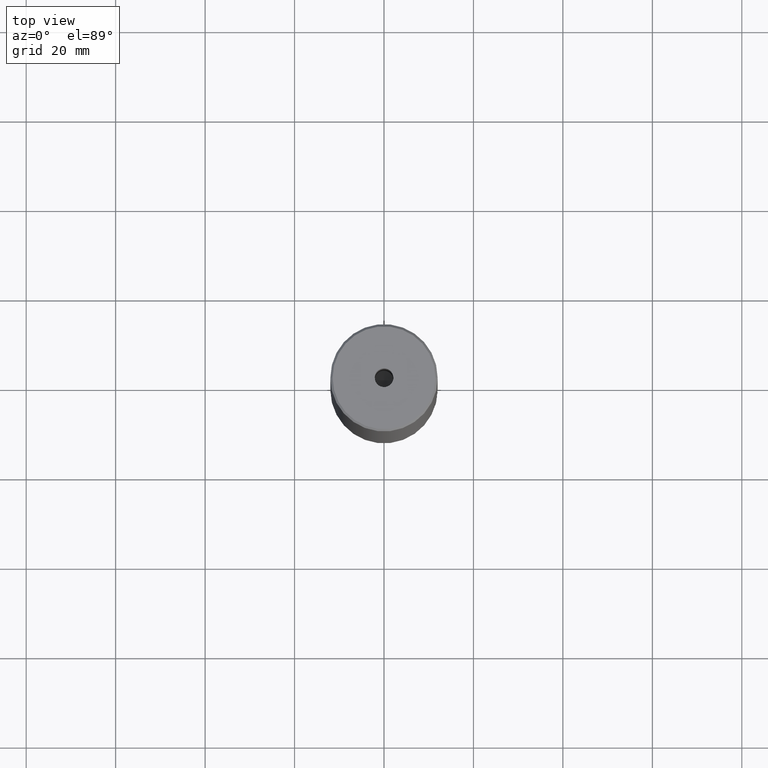
[diagram: clean part render]
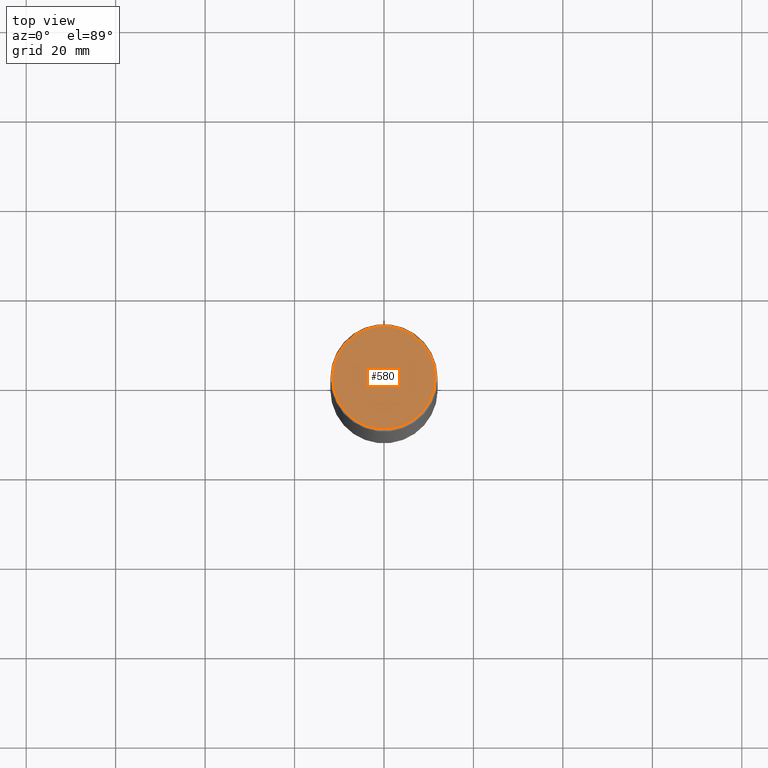
[diagram: same view with one face highlighted and labeled with its STEP entity id]
A machine part, top view. The second image highlights one B-rep face of the part: STEP entity #580.
In plain terms, the highlighted planar face has unit normal (0, -0, 1).
Its self-contained STEP definition (entity closure, byte-faithful):
#12 = VERTEX_POINT ( 'NONE', #170 ) ;
#14 = DIRECTION ( 'NONE',  ( 1.000000000000000000, 0.000000000000000000, 0.000000000000000000 ) ) ;
#22 = CIRCLE ( 'NONE', #155, 11.50000000000002309 ) ;
#59 = DIRECTION ( 'NONE',  ( 1.000000000000000000, 0.000000000000000000, 0.000000000000000000 ) ) ;
#65 = AXIS2_PLACEMENT_3D ( 'NONE', #421, #424, #59 ) ;
#66 = PLANE ( 'NONE',  #65 ) ;
#70 = FACE_BOUND ( 'NONE', #432, .T. ) ;
#75 = EDGE_CURVE ( 'NONE', #12, #240, #553, .T. ) ;
#82 = EDGE_CURVE ( 'NONE', #532, #320, #397, .T. ) ;
#85 = CARTESIAN_POINT ( 'NONE',  ( 0.000000000000000000, 0.000000000000000000, 0.000000000000000000 ) ) ;
#94 = DIRECTION ( 'NONE',  ( -0.000000000000000000, -0.000000000000000000, 1.000000000000000000 ) ) ;
#107 = AXIS2_PLACEMENT_3D ( 'NONE', #416, #560, #14 ) ;
#152 = CIRCLE ( 'NONE', #107, 2.099999999999998757 ) ;
#155 = AXIS2_PLACEMENT_3D ( 'NONE', #85, #184, #230 ) ;
#170 = CARTESIAN_POINT ( 'NONE',  ( 11.50000000000002309, 1.438959988998141541E-15, 0.000000000000000000 ) ) ;
#181 = ORIENTED_EDGE ( 'NONE', *, *, #82, .F. ) ;
#184 = DIRECTION ( 'NONE',  ( -0.000000000000000000, -0.000000000000000000, 1.000000000000000000 ) ) ;
#228 = DIRECTION ( 'NONE',  ( 1.000000000000000000, 0.000000000000000000, 0.000000000000000000 ) ) ;
#230 = DIRECTION ( 'NONE',  ( 1.000000000000000000, 0.000000000000000000, 0.000000000000000000 ) ) ;
#240 = VERTEX_POINT ( 'NONE', #476 ) ;
#249 = AXIS2_PLACEMENT_3D ( 'NONE', #385, #542, #228 ) ;
#282 = EDGE_LOOP ( 'NONE', ( #408, #505 ) ) ;
#315 = CARTESIAN_POINT ( 'NONE',  ( 0.000000000000000000, 0.000000000000000000, -1.990051048614449116E-16 ) ) ;
#320 = VERTEX_POINT ( 'NONE', #369 ) ;
#364 = EDGE_CURVE ( 'NONE', #320, #532, #152, .T. ) ;
#369 = CARTESIAN_POINT ( 'NONE',  ( -2.099999999999998757, 2.571758278209440478E-16, -1.990051048614449116E-16 ) ) ;
#380 = ORIENTED_EDGE ( 'NONE', *, *, #364, .F. ) ;
#385 = CARTESIAN_POINT ( 'NONE',  ( 0.000000000000000000, 0.000000000000000000, 0.000000000000000000 ) ) ;
#389 = DIRECTION ( 'NONE',  ( 1.000000000000000000, 0.000000000000000000, 0.000000000000000000 ) ) ;
#393 = EDGE_CURVE ( 'NONE', #240, #12, #22, .T. ) ;
#397 = CIRCLE ( 'NONE', #572, 2.099999999999998757 ) ;
#408 = ORIENTED_EDGE ( 'NONE', *, *, #393, .T. ) ;
#416 = CARTESIAN_POINT ( 'NONE',  ( 0.000000000000000000, 0.000000000000000000, -1.990051048614449116E-16 ) ) ;
#421 = CARTESIAN_POINT ( 'NONE',  ( 0.000000000000000000, 0.000000000000000000, 0.000000000000000000 ) ) ;
#424 = DIRECTION ( 'NONE',  ( 0.000000000000000000, -0.000000000000000000, 1.000000000000000000 ) ) ;
#432 = EDGE_LOOP ( 'NONE', ( #181, #380 ) ) ;
#476 = CARTESIAN_POINT ( 'NONE',  ( -11.50000000000002309, 0.000000000000000000, 0.000000000000000000 ) ) ;
#505 = ORIENTED_EDGE ( 'NONE', *, *, #75, .T. ) ;
#532 = VERTEX_POINT ( 'NONE', #533 ) ;
#533 = CARTESIAN_POINT ( 'NONE',  ( 2.099999999999998757, 0.000000000000000000, -1.990051048614449116E-16 ) ) ;
#535 = FACE_OUTER_BOUND ( 'NONE', #282, .T. ) ;
#542 = DIRECTION ( 'NONE',  ( -0.000000000000000000, -0.000000000000000000, 1.000000000000000000 ) ) ;
#553 = CIRCLE ( 'NONE', #249, 11.50000000000002309 ) ;
#560 = DIRECTION ( 'NONE',  ( -0.000000000000000000, -0.000000000000000000, 1.000000000000000000 ) ) ;
#572 = AXIS2_PLACEMENT_3D ( 'NONE', #315, #94, #389 ) ;
#580 = ADVANCED_FACE ( 'NONE', ( #70, #535 ), #66, .T. ) ;